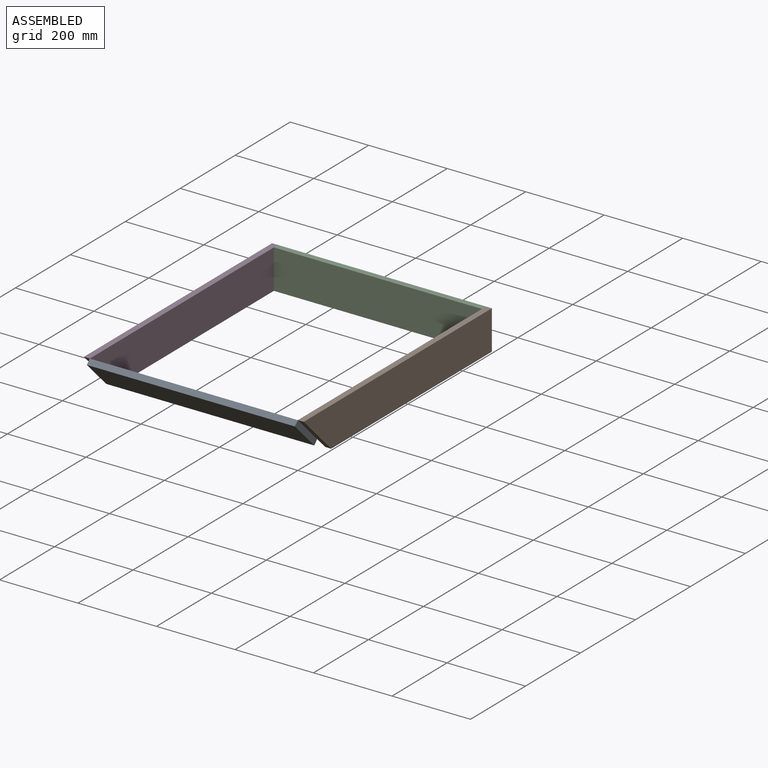
[diagram: assembled view]
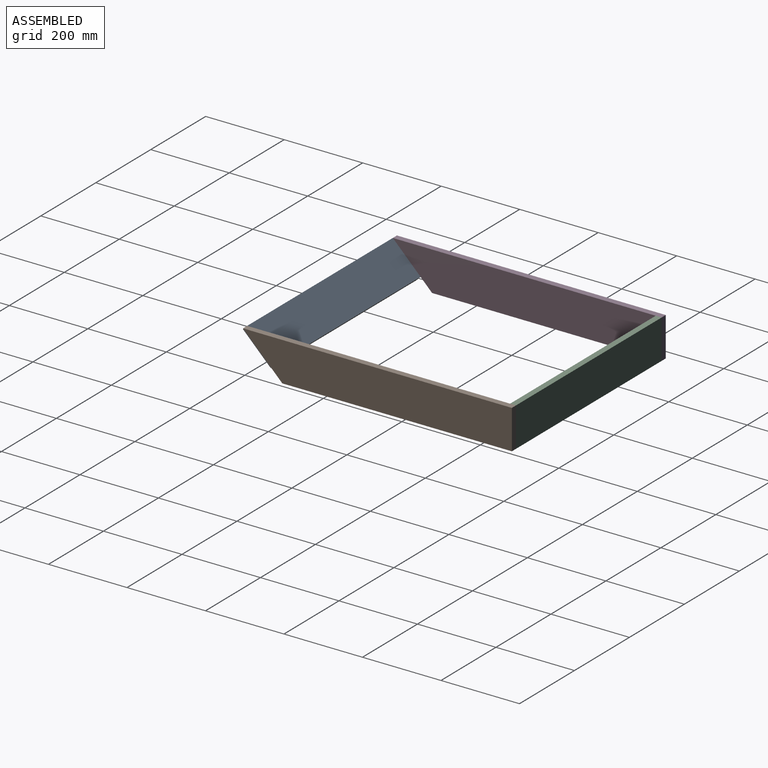
[diagram: assembled view, second angle]
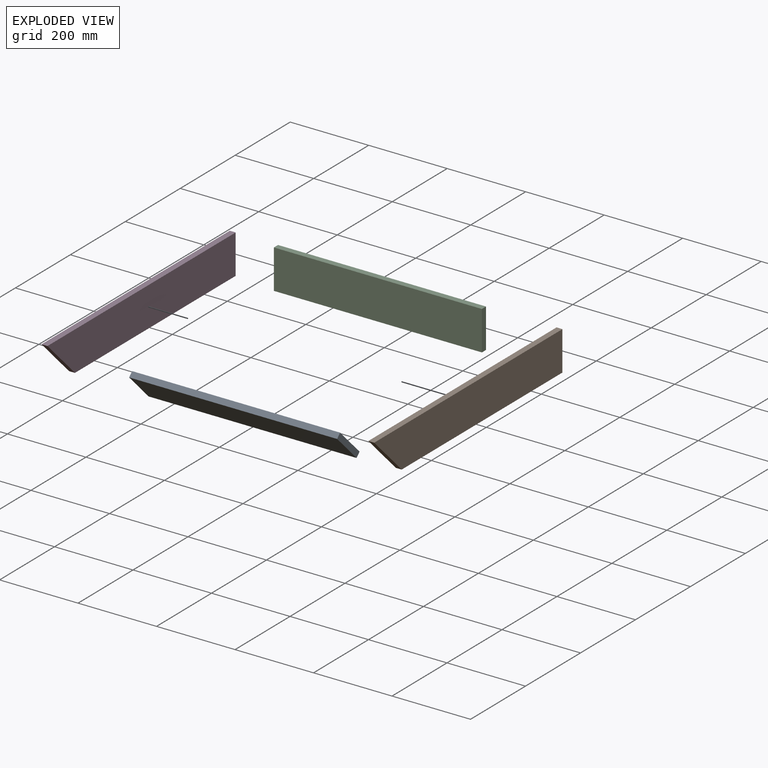
[diagram: exploded view]
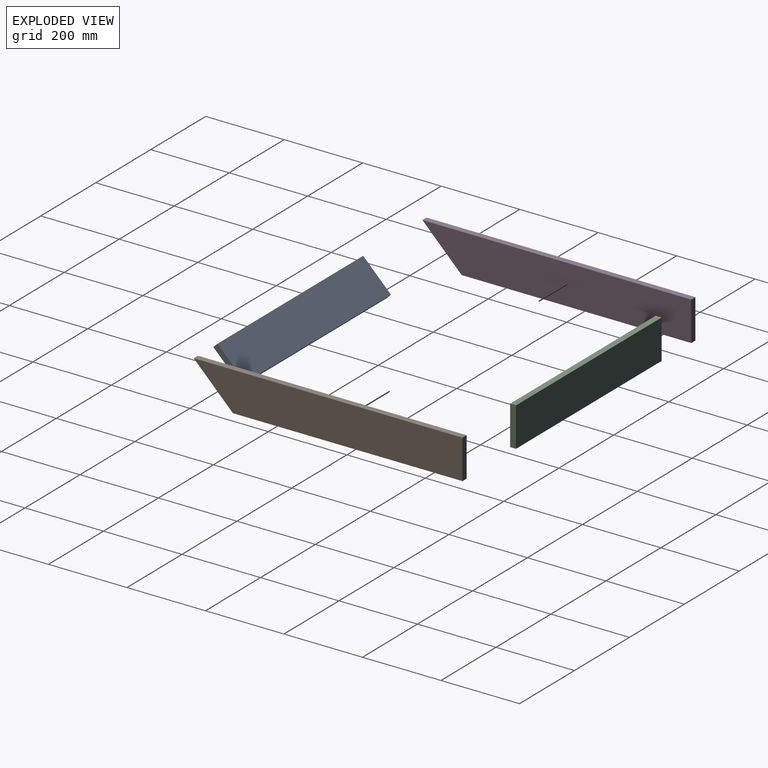
[diagram: exploded view, second angle]
ASSEMBLY  parts=4 mates=3
PART A: 6 faces, bbox 530x100x15 mm
  f0: plane 100x15mm, normal (1,0,0), area 1500mm2, adj f1,f3,f4,f5
  f1: plane 530x15mm, normal (0,1,0), area 7950mm2, adj f0,f2,f4,f5
  f2: plane 100x15mm, normal (-1,0,0), area 1500mm2, adj f1,f3,f4,f5
  f3: plane 530x15mm, normal (0,-1,0), area 7950mm2, adj f0,f2,f4,f5
  f4: plane 530x100mm, normal (0,0,1), area 53000mm2, adj f0,f1,f2,f3
  f5: plane 530x100mm, normal (0,0,-1), area 53000mm2, adj f0,f1,f2,f3
PART B: 6 faces, bbox 15x684.9x100 mm
  f0: plane 100x15mm, normal (0,1,0), area 1500mm2, adj f1,f3,f4,f5
  f1: plane 684.9x15mm, normal (0,0,1), area 10273.5mm2, adj f0,f2,f4,f5
  f2: plane 100x100mm, normal (0,-0.71,-0.71), area 2121.3mm2, adj f1,f3,f4,f5
  f3: plane 584.9x15mm, normal (0,0,-1), area 8773.5mm2, adj f0,f2,f4,f5
  f4: plane 684.9x100mm, normal (1,0,0), area 63490mm2, adj f0,f1,f2,f3
  f5: plane 684.9x100mm, normal (-1,0,0), area 63490mm2, adj f0,f1,f2,f3
PART C: same geometry as A
PART D: same geometry as B
PLACE A rot(axis=(-1,0,0),45deg) t=(-68.01,-371.3,-113.43)mm
PLACE B t=(204.49,-53.6,-117.47)mm
PLACE C rot(axis=(1,0,0),90deg) t=(-68.01,288.85,-117.47)mm
PLACE D t=(-340.51,-53.6,-117.47)mm
MATE fastened A.f2 <-> D.f4  axis (-1,0,0) through (-333.01,-396.05,-67.47)mm
MATE fastened C.f2 <-> D.f4  axis (-1,0,0) through (-333.01,288.85,-67.47)mm
MATE fastened B.f5 <-> C.f0  axis (-1,0,0) through (196.99,288.85,-67.47)mm
